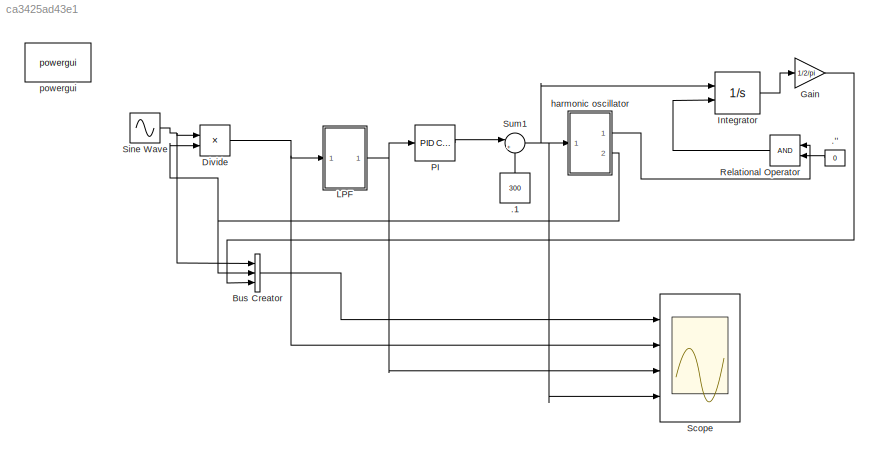
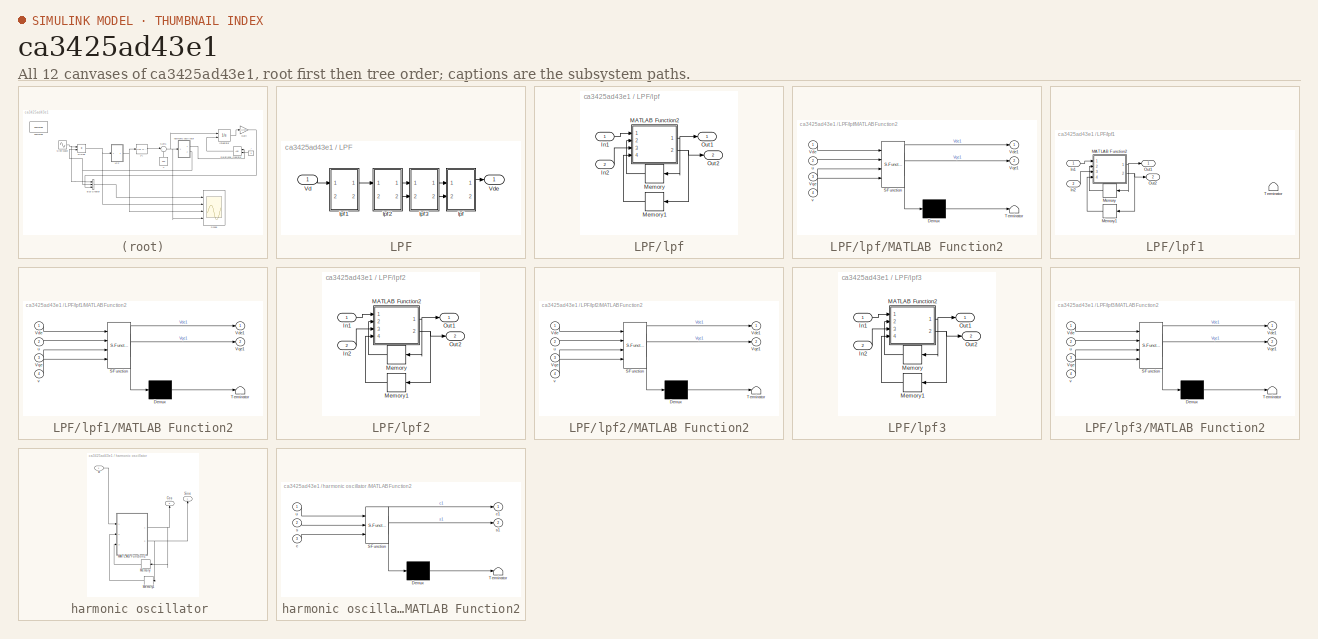
[diagram: thumbnail index - all 12 canvases of the model, root first then tree order]
MODEL slx_ca3425ad43e1
KIND model
CONFIG AbsTol = auto
CONFIG FixedStep = auto
CONFIG MaxStep = auto
CONFIG MinStep = auto
CONFIG RelTol = 1e-3
CONFIG SampleTimeConstraint = Unconstrained
CONFIG Solver = VariableStepAuto
CONFIG SolverMode = Auto
CONFIG SolverName = VariableStepAuto
CONFIG StartTime = 0.0
CONFIG StopTime = 1
BLOCK [Constant] .''
  Value = 0
BLOCK [Constant] .1
  Value = 300
BLOCK [BusCreator] Bus Creator
  DisplayOption = bar
  InheritFromInputs = on
  Inputs = 3
  Ports = [3, 1]
BLOCK [Product] Divide
  InputSameDT = off
  OutDataTypeStr = Inherit: Inherit via internal rule
  Ports = [2, 1]
  RndMeth = Floor
  SaturateOnIntegerOverflow = off
BLOCK [Gain] Gain
  Gain = 1/2/pi
  OutDataTypeStr = Inherit: Inherit via internal rule
  ParamDataTypeStr = Inherit: Inherit via internal rule
  SaturateOnIntegerOverflow = off
BLOCK [Integrator] Integrator
  ExternalReset = rising
  LowerSaturationLimit = 0
  Ports = [2, 1]
  UpperSaturationLimit = 2*pi
BLOCK [SubSystem] LPF
  Ports = [1, 1]
  RequestExecContextInheritance = off
  Variant = off
BLOCK [Inport] LPF/Vd
  IconDisplay = Port number
BLOCK [Outport] LPF/Vde
  IconDisplay = Port number
BLOCK [SubSystem] LPF/lpf
  Ports = [2, 2]
  RequestExecContextInheritance = off
  Variant = off
BLOCK [Inport] LPF/lpf/In1
  IconDisplay = Port number
BLOCK [Inport] LPF/lpf/In2
  IconDisplay = Port number
  Port = 2
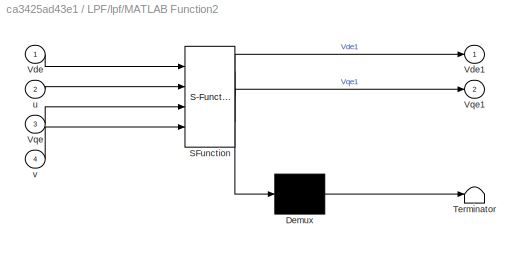
BLOCK [SubSystem] LPF/lpf/MATLAB Function2
  ErrorFcn = Stateflow.Translate.translate
  PermitHierarchicalResolution = ExplicitOnly
  Ports = [4, 2]
  RequestExecContextInheritance = off
  SFBlockType = MATLAB Function
  TreatAsAtomicUnit = on
  Variant = off
BLOCK [Demux] LPF/lpf/MATLAB Function2/ Demux 
  Outputs = 1
  Ports = [1, 1]
BLOCK [S-Function] LPF/lpf/MATLAB Function2/ SFunction 
  EnableBusSupport = on
  FunctionName = sf_sfun
  PortCounts = [4 3]
  Ports = [4, 3]
  SFunctionDeploymentMode = off
  Tag = Stateflow S-Function singlephase 4
BLOCK [Terminator] LPF/lpf/MATLAB Function2/ Terminator 
BLOCK [Inport] LPF/lpf/MATLAB Function2/Vde
  IconDisplay = Port number
BLOCK [Outport] LPF/lpf/MATLAB Function2/Vde1
  IconDisplay = Port number
BLOCK [Inport] LPF/lpf/MATLAB Function2/Vqe
  IconDisplay = Port number
  Port = 3
BLOCK [Outport] LPF/lpf/MATLAB Function2/Vqe1
  IconDisplay = Port number
  Port = 2
BLOCK [Inport] LPF/lpf/MATLAB Function2/u
  IconDisplay = Port number
  Port = 2
BLOCK [Inport] LPF/lpf/MATLAB Function2/v
  IconDisplay = Port number
  Port = 4
BLOCK [Memory] LPF/lpf/Memory
BLOCK [Memory] LPF/lpf/Memory1
BLOCK [Outport] LPF/lpf/Out1
  IconDisplay = Port number
BLOCK [Outport] LPF/lpf/Out2
  IconDisplay = Port number
  Port = 2
BLOCK [SubSystem] LPF/lpf1
  Ports = [2, 2]
  RequestExecContextInheritance = off
  Variant = off
BLOCK [Inport] LPF/lpf1/In1
  IconDisplay = Port number
BLOCK [Inport] LPF/lpf1/In2
  IconDisplay = Port number
  Port = 2
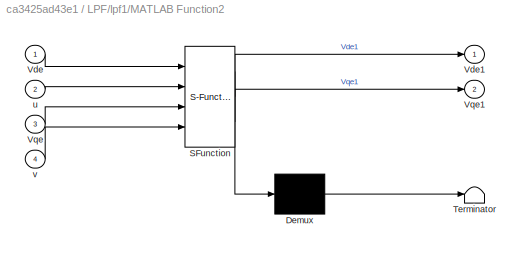
BLOCK [SubSystem] LPF/lpf1/MATLAB Function2
  ErrorFcn = Stateflow.Translate.translate
  PermitHierarchicalResolution = ExplicitOnly
  Ports = [4, 2]
  RequestExecContextInheritance = off
  SFBlockType = MATLAB Function
  TreatAsAtomicUnit = on
  Variant = off
BLOCK [Demux] LPF/lpf1/MATLAB Function2/ Demux 
  Outputs = 1
  Ports = [1, 1]
BLOCK [S-Function] LPF/lpf1/MATLAB Function2/ SFunction 
  EnableBusSupport = on
  FunctionName = sf_sfun
  PortCounts = [4 3]
  Ports = [4, 3]
  SFunctionDeploymentMode = off
  Tag = Stateflow S-Function singlephase 1
BLOCK [Terminator] LPF/lpf1/MATLAB Function2/ Terminator 
BLOCK [Inport] LPF/lpf1/MATLAB Function2/Vde
  IconDisplay = Port number
BLOCK [Outport] LPF/lpf1/MATLAB Function2/Vde1
  IconDisplay = Port number
BLOCK [Inport] LPF/lpf1/MATLAB Function2/Vqe
  IconDisplay = Port number
  Port = 3
BLOCK [Outport] LPF/lpf1/MATLAB Function2/Vqe1
  IconDisplay = Port number
  Port = 2
BLOCK [Inport] LPF/lpf1/MATLAB Function2/u
  IconDisplay = Port number
  Port = 2
BLOCK [Inport] LPF/lpf1/MATLAB Function2/v
  IconDisplay = Port number
  Port = 4
BLOCK [Memory] LPF/lpf1/Memory
BLOCK [Memory] LPF/lpf1/Memory1
BLOCK [Outport] LPF/lpf1/Out1
  IconDisplay = Port number
BLOCK [Outport] LPF/lpf1/Out2
  IconDisplay = Port number
  Port = 2
BLOCK [Terminator] LPF/lpf1/Terminator
BLOCK [SubSystem] LPF/lpf2
  Ports = [2, 2]
  RequestExecContextInheritance = off
  Variant = off
BLOCK [Inport] LPF/lpf2/In1
  IconDisplay = Port number
BLOCK [Inport] LPF/lpf2/In2
  IconDisplay = Port number
  Port = 2
BLOCK [SubSystem] LPF/lpf2/MATLAB Function2
  ErrorFcn = Stateflow.Translate.translate
  PermitHierarchicalResolution = ExplicitOnly
  Ports = [4, 2]
  RequestExecContextInheritance = off
  SFBlockType = MATLAB Function
  TreatAsAtomicUnit = on
  Variant = off
BLOCK [Demux] LPF/lpf2/MATLAB Function2/ Demux 
  Outputs = 1
  Ports = [1, 1]
BLOCK [S-Function] LPF/lpf2/MATLAB Function2/ SFunction 
  EnableBusSupport = on
  FunctionName = sf_sfun
  PortCounts = [4 3]
  Ports = [4, 3]
  SFunctionDeploymentMode = off
  Tag = Stateflow S-Function singlephase 2
BLOCK [Terminator] LPF/lpf2/MATLAB Function2/ Terminator 
BLOCK [Inport] LPF/lpf2/MATLAB Function2/Vde
  IconDisplay = Port number
BLOCK [Outport] LPF/lpf2/MATLAB Function2/Vde1
  IconDisplay = Port number
BLOCK [Inport] LPF/lpf2/MATLAB Function2/Vqe
  IconDisplay = Port number
  Port = 3
BLOCK [Outport] LPF/lpf2/MATLAB Function2/Vqe1
  IconDisplay = Port number
  Port = 2
BLOCK [Inport] LPF/lpf2/MATLAB Function2/u
  IconDisplay = Port number
  Port = 2
BLOCK [Inport] LPF/lpf2/MATLAB Function2/v
  IconDisplay = Port number
  Port = 4
BLOCK [Memory] LPF/lpf2/Memory
BLOCK [Memory] LPF/lpf2/Memory1
BLOCK [Outport] LPF/lpf2/Out1
  IconDisplay = Port number
BLOCK [Outport] LPF/lpf2/Out2
  IconDisplay = Port number
  Port = 2
BLOCK [SubSystem] LPF/lpf3
  Ports = [2, 2]
  RequestExecContextInheritance = off
  Variant = off
BLOCK [Inport] LPF/lpf3/In1
  IconDisplay = Port number
BLOCK [Inport] LPF/lpf3/In2
  IconDisplay = Port number
  Port = 2
BLOCK [SubSystem] LPF/lpf3/MATLAB Function2
  ErrorFcn = Stateflow.Translate.translate
  PermitHierarchicalResolution = ExplicitOnly
  Ports = [4, 2]
  RequestExecContextInheritance = off
  SFBlockType = MATLAB Function
  TreatAsAtomicUnit = on
  Variant = off
BLOCK [Demux] LPF/lpf3/MATLAB Function2/ Demux 
  Outputs = 1
  Ports = [1, 1]
BLOCK [S-Function] LPF/lpf3/MATLAB Function2/ SFunction 
  EnableBusSupport = on
  FunctionName = sf_sfun
  PortCounts = [4 3]
  Ports = [4, 3]
  SFunctionDeploymentMode = off
  Tag = Stateflow S-Function singlephase 5
BLOCK [Terminator] LPF/lpf3/MATLAB Function2/ Terminator 
BLOCK [Inport] LPF/lpf3/MATLAB Function2/Vde
  IconDisplay = Port number
BLOCK [Outport] LPF/lpf3/MATLAB Function2/Vde1
  IconDisplay = Port number
BLOCK [Inport] LPF/lpf3/MATLAB Function2/Vqe
  IconDisplay = Port number
  Port = 3
BLOCK [Outport] LPF/lpf3/MATLAB Function2/Vqe1
  IconDisplay = Port number
  Port = 2
BLOCK [Inport] LPF/lpf3/MATLAB Function2/u
  IconDisplay = Port number
  Port = 2
BLOCK [Inport] LPF/lpf3/MATLAB Function2/v
  IconDisplay = Port number
  Port = 4
BLOCK [Memory] LPF/lpf3/Memory
BLOCK [Memory] LPF/lpf3/Memory1
BLOCK [Outport] LPF/lpf3/Out1
  IconDisplay = Port number
BLOCK [Outport] LPF/lpf3/Out2
  IconDisplay = Port number
  Port = 2
BLOCK [Reference] PI  REF=simulink/Continuous/PID Controller
  Ports = [1, 1]
  SourceBlock = simulink/Continuous/PID Controller
  SourceType = PID 1dof
BLOCK [RelationalOperator] Relational Operator
  InputSameDT = off
  OutDataTypeStr = boolean
  Ports = [2, 1]
BLOCK [Scope] Scope
  NumInputPorts = 4
  Ports = [4]
  ScopeSpecificationString = Simulink.scopes.TimeScopeBlockCfg('CurrentConfiguration', extmgr.ConfigurationSet(extmgr.Configuration('Core','General UI',true),extmgr.Configuration('Core','Source UI',true),extmgr.Configuration('Sources','WiredSimulink',true),extmgr.Configuration('Visuals','Time Domain',true,'SerializedDisplays',{struct('MinYLimReal','-1.25004','MaxYLimReal','1.25','YLabelReal','','MinYLimMag','0.00000','MaxYLim...<+4096ch>
BLOCK [Sin] Sine Wave
  Frequency = w1
  Ports = [0, 1]
  SampleTime = Ts
BLOCK [Sum] Sum1
  IconShape = round
  InputSameDT = off
  Inputs = |++
  OutDataTypeStr = Inherit: Inherit via internal rule
  Ports = [2, 1]
  SaturateOnIntegerOverflow = off
BLOCK [SubSystem] harmonic oscillator 
  Ports = [1, 2]
  RequestExecContextInheritance = off
  Variant = off
BLOCK [Outport] harmonic oscillator /Cos
  IconDisplay = Port number
  Port = 2
BLOCK [SubSystem] harmonic oscillator /MATLAB Function2
  ErrorFcn = Stateflow.Translate.translate
  PermitHierarchicalResolution = ExplicitOnly
  Ports = [3, 2]
  RequestExecContextInheritance = off
  SFBlockType = MATLAB Function
  TreatAsAtomicUnit = on
  Variant = off
BLOCK [Demux] harmonic oscillator /MATLAB Function2/ Demux 
  Outputs = 1
  Ports = [1, 1]
BLOCK [S-Function] harmonic oscillator /MATLAB Function2/ SFunction 
  EnableBusSupport = on
  FunctionName = sf_sfun
  PortCounts = [3 3]
  Ports = [3, 3]
  SFunctionDeploymentMode = off
  Tag = Stateflow S-Function singlephase 3
BLOCK [Terminator] harmonic oscillator /MATLAB Function2/ Terminator 
BLOCK [Inport] harmonic oscillator /MATLAB Function2/c
  IconDisplay = Port number
  Port = 3
BLOCK [Outport] harmonic oscillator /MATLAB Function2/c1
  IconDisplay = Port number
BLOCK [Inport] harmonic oscillator /MATLAB Function2/s
  IconDisplay = Port number
  Port = 2
BLOCK [Outport] harmonic oscillator /MATLAB Function2/s1
  IconDisplay = Port number
  Port = 2
BLOCK [Inport] harmonic oscillator /MATLAB Function2/u
  IconDisplay = Port number
BLOCK [Memory] harmonic oscillator /Memory
  X0 = 1
BLOCK [Memory] harmonic oscillator /Memory1
BLOCK [Outport] harmonic oscillator /Sine
  IconDisplay = Port number
BLOCK [Inport] harmonic oscillator /w
  IconDisplay = Port number
BLOCK [Reference] powergui  REF=powerlib/powergui
  Ports = []
  Priority = 1
  SourceBlock = powerlib/powergui
  SourceType = PSB option menu block
  UserDataPersistent = on
LINE .'':1 -> Relational Operator:2
LINE .1:1 -> Sum1:2
LINE Bus Creator:1 -> Scope:1
NET Divide:1 -> LPF:1, Scope:2
LINE Gain:1 -> Bus Creator:3
LINE Integrator:1 -> Gain:1
LINE LPF/Vd:1 -> LPF/lpf1:1
LINE LPF/lpf/In1:1 -> LPF/lpf/MATLAB Function2:1
LINE LPF/lpf/In2:1 -> LPF/lpf/MATLAB Function2:3
NET LPF/lpf/MATLAB Function2:1 -> LPF/lpf/Memory:1, LPF/lpf/Out1:1
NET LPF/lpf/MATLAB Function2:2 -> LPF/lpf/Memory1:1, LPF/lpf/Out2:1
LINE LPF/lpf/Memory1:1 -> LPF/lpf/MATLAB Function2:4
LINE LPF/lpf/Memory:1 -> LPF/lpf/MATLAB Function2:2
LINE LPF/lpf1/In1:1 -> LPF/lpf1/MATLAB Function2:1
LINE LPF/lpf1/In2:1 -> LPF/lpf1/MATLAB Function2:3
NET LPF/lpf1/MATLAB Function2:1 -> LPF/lpf1/Memory:1, LPF/lpf1/Out1:1
NET LPF/lpf1/MATLAB Function2:2 -> LPF/lpf1/Memory1:1, LPF/lpf1/Out2:1
LINE LPF/lpf1/Memory1:1 -> LPF/lpf1/MATLAB Function2:4
LINE LPF/lpf1/Memory:1 -> LPF/lpf1/MATLAB Function2:2
LINE LPF/lpf1:1 -> LPF/lpf2:1
LINE LPF/lpf2/In1:1 -> LPF/lpf2/MATLAB Function2:1
LINE LPF/lpf2/In2:1 -> LPF/lpf2/MATLAB Function2:3
NET LPF/lpf2/MATLAB Function2:1 -> LPF/lpf2/Memory:1, LPF/lpf2/Out1:1
NET LPF/lpf2/MATLAB Function2:2 -> LPF/lpf2/Memory1:1, LPF/lpf2/Out2:1
LINE LPF/lpf2/Memory1:1 -> LPF/lpf2/MATLAB Function2:4
LINE LPF/lpf2/Memory:1 -> LPF/lpf2/MATLAB Function2:2
LINE LPF/lpf2:1 -> LPF/lpf3:1
LINE LPF/lpf2:2 -> LPF/lpf3:2
LINE LPF/lpf3/In1:1 -> LPF/lpf3/MATLAB Function2:1
LINE LPF/lpf3/In2:1 -> LPF/lpf3/MATLAB Function2:3
NET LPF/lpf3/MATLAB Function2:1 -> LPF/lpf3/Memory:1, LPF/lpf3/Out1:1
NET LPF/lpf3/MATLAB Function2:2 -> LPF/lpf3/Memory1:1, LPF/lpf3/Out2:1
LINE LPF/lpf3/Memory1:1 -> LPF/lpf3/MATLAB Function2:4
LINE LPF/lpf3/Memory:1 -> LPF/lpf3/MATLAB Function2:2
LINE LPF/lpf3:1 -> LPF/lpf:1
LINE LPF/lpf3:2 -> LPF/lpf:2
LINE LPF/lpf:1 -> LPF/Vde:1
NET LPF:1 -> PI:1, Scope:3
LINE PI:1 -> Sum1:1
LINE Relational Operator:1 -> Integrator:2
NET Sine Wave:1 -> Bus Creator:1, Divide:1
NET Sum1:1 -> Integrator:1, Scope:4, harmonic oscillator :1
NET harmonic oscillator /MATLAB Function2:1 -> harmonic oscillator /Cos:1, harmonic oscillator /Memory:1
NET harmonic oscillator /MATLAB Function2:2 -> harmonic oscillator /Memory1:1, harmonic oscillator /Sine:1
LINE harmonic oscillator /Memory1:1 -> harmonic oscillator /MATLAB Function2:2
LINE harmonic oscillator /Memory:1 -> harmonic oscillator /MATLAB Function2:3
LINE harmonic oscillator /w:1 -> harmonic oscillator /MATLAB Function2:1
LINE harmonic oscillator :1 -> Relational Operator:1
NET harmonic oscillator :2 -> Bus Creator:2, Divide:2
note: NET lines group one-source signal fan-out (src -> all destinations, sorted); 1:1 wires keep LINE
CHART LPF/lpf1/MATLAB Function2 states=1 transitions=1
  STATE_LABEL 'eML_blk_kernel()'
  STATE_LABEL 'SCRIPT:\nfunction [Vde1,Vqe1] = fcn(Vde,u,Vqe,v)\n%#codegen\nTs=5e-5;\na=Ts/0.009;\n%Vde1=u*a/(a+1)+(1/(1+a))*(Vde-u);\n%Vqe1=v*a/(a+1)+(1/(1+a))*(Vqe-v);\nVde1=u+a*(Vde-u);\nVqe1=v+a*(Vqe-v);\nend\n'  <repeated x4 — deduplicated; at blocks: MATLAB Function2>
CHART LPF/lpf2/MATLAB Function2 states=1 transitions=1
  STATE_LABEL 'eML_blk_kernel()'
CHART harmonic
oscillator
/MATLAB Function2 states=1 transitions=1
  STATE_LABEL 'eML_blk_kernel()'
  STATE_LABEL 'SCRIPT:\nfunction [c1,s1] = fcn(u,s,c)\n\nTs=5e-5;\n\n    s1=s+u*Ts*c;\n    \n    c1=c-u*Ts*s1;\n    if c1>1\n        s1=0;\n        c1=1;\n\n    end\n        \n    \n%     i1=i+0.001;\n%     if >0.42\n%        i=0;i1=0;\n%         c1=1;\n%         s1=0;\n%     end\n    \n        \n\n\n    \n\n'
CHART LPF/lpf/MATLAB Function2 states=1 transitions=1
  STATE_LABEL 'eML_blk_kernel()'
CHART LPF/lpf3/MATLAB Function2 states=1 transitions=1
  STATE_LABEL 'eML_blk_kernel()'
